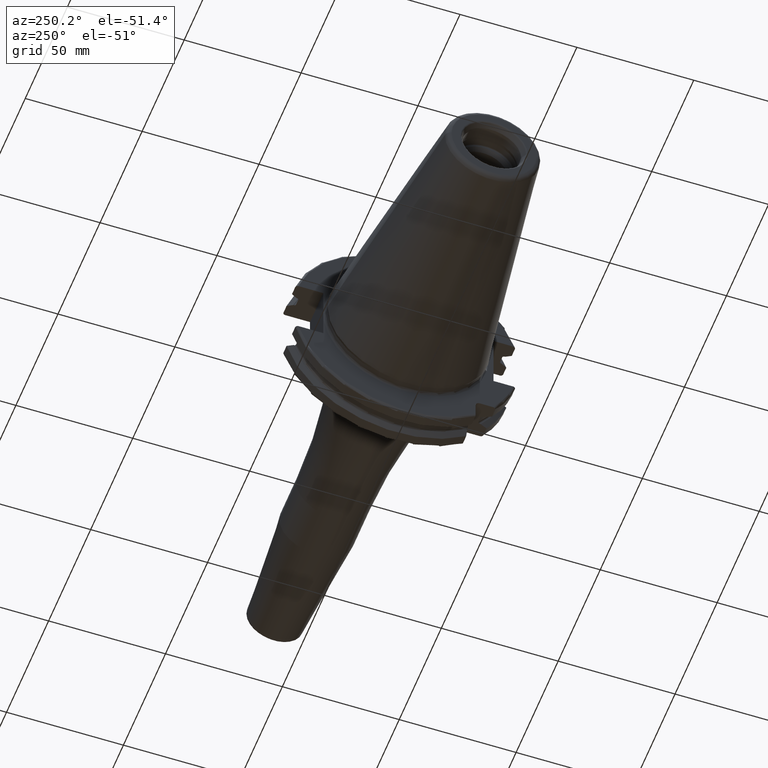
[diagram: clean part render]
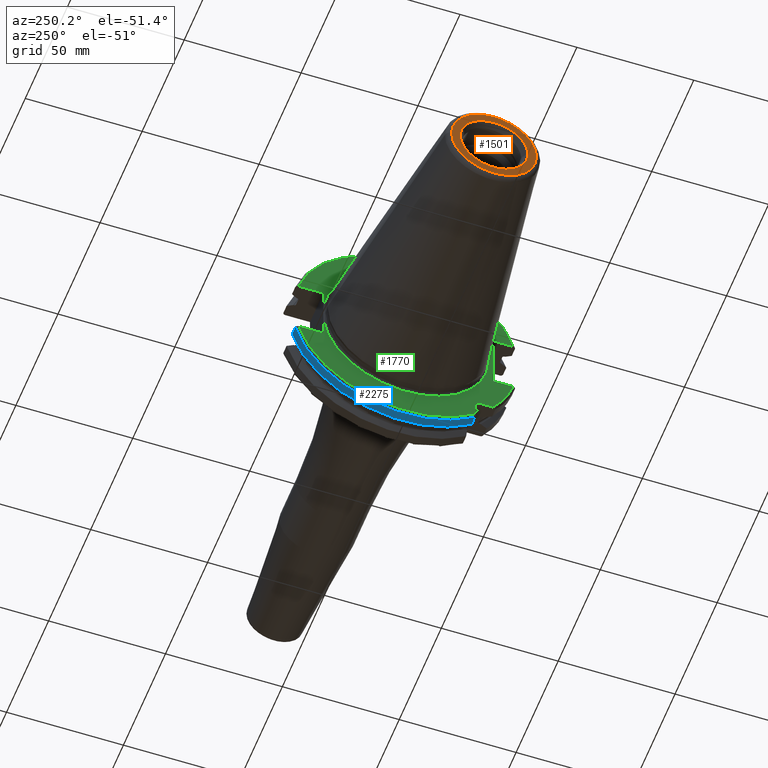
[diagram: same view with three faces highlighted in distinct colors, each labeled with its STEP entity id]
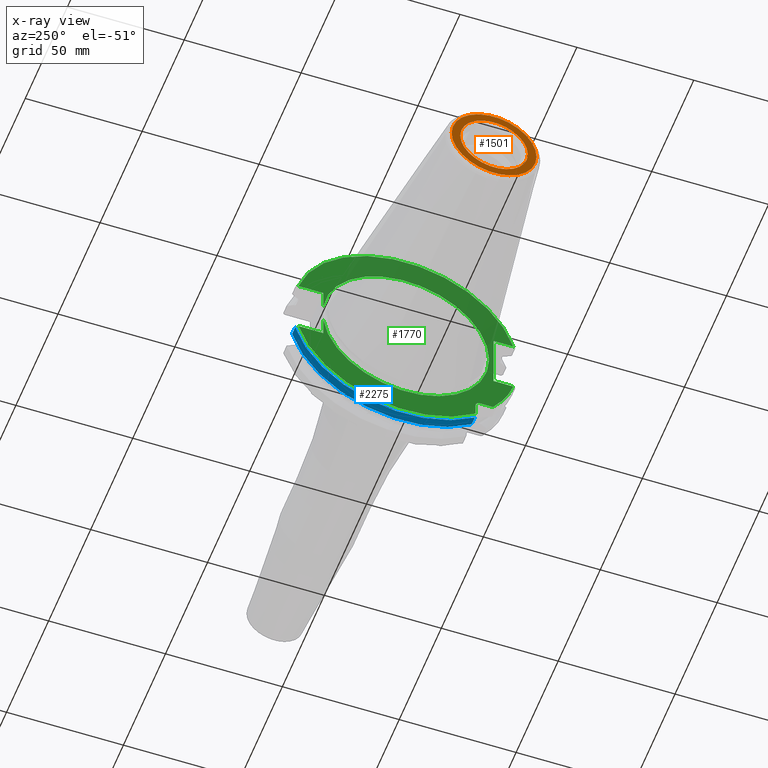
[diagram: x-ray of the same camera — body ghosted, the three highlighted faces saturated]
A machine part, auxiliary view with three faces highlighted in distinct colors.
The next image is the same camera in x-ray (body ghosted, the three faces saturated) — at least one of them is partly hidden behind the body in this view.
Their STEP definitions:

[orange] entity #1501 — the highlighted planar face has unit normal (1, 0, 0).
#2=CARTESIAN_POINT('',(-1.016E2,0.E0,0.E0));
#3=DIRECTION('',(-1.E0,0.E0,0.E0));
#4=DIRECTION('',(0.E0,1.E0,0.E0));
#5=AXIS2_PLACEMENT_3D('',#2,#3,#4);
#7=CARTESIAN_POINT('',(-1.016E2,0.E0,0.E0));
#8=DIRECTION('',(1.E0,0.E0,0.E0));
#9=DIRECTION('',(0.E0,1.E0,0.E0));
#10=AXIS2_PLACEMENT_3D('',#7,#8,#9);
#12=CARTESIAN_POINT('',(-1.016E2,0.E0,0.E0));
#13=DIRECTION('',(1.E0,0.E0,0.E0));
#14=DIRECTION('',(0.E0,1.E0,0.E0));
#15=AXIS2_PLACEMENT_3D('',#12,#13,#14);
#17=CARTESIAN_POINT('',(-1.016E2,0.E0,0.E0));
#18=DIRECTION('',(1.E0,0.E0,0.E0));
#19=DIRECTION('',(0.E0,-1.E0,0.E0));
#20=AXIS2_PLACEMENT_3D('',#17,#18,#19);
#1227=CARTESIAN_POINT('',(-1.016E2,1.816144700117E1,0.E0));
#1229=VERTEX_POINT('',#1227);
#1231=CARTESIAN_POINT('',(-1.016E2,-1.816144700117E1,0.E0));
#1233=VERTEX_POINT('',#1231);
#1290=CARTESIAN_POINT('',(-1.016E2,1.446188021535E1,0.E0));
#1291=CARTESIAN_POINT('',(-1.016E2,-1.446188021535E1,0.E0));
#1292=VERTEX_POINT('',#1290);
#1293=VERTEX_POINT('',#1291);
#1484=CARTESIAN_POINT('',(-1.016E2,0.E0,0.E0));
#1485=DIRECTION('',(1.E0,0.E0,0.E0));
#1486=DIRECTION('',(0.E0,-1.E0,0.E0));
#1487=AXIS2_PLACEMENT_3D('',#1484,#1485,#1486);
#1488=PLANE('',#1487);
#1490=ORIENTED_EDGE('',*,*,#1489,.F.);
#1492=ORIENTED_EDGE('',*,*,#1491,.T.);
#1493=EDGE_LOOP('',(#1490,#1492));
#1494=FACE_OUTER_BOUND('',#1493,.F.);
#1496=ORIENTED_EDGE('',*,*,#1495,.F.);
#1498=ORIENTED_EDGE('',*,*,#1497,.F.);
#1499=EDGE_LOOP('',(#1496,#1498));
#1500=FACE_BOUND('',#1499,.F.);
#1501=ADVANCED_FACE('',(#1494,#1500),#1488,.F.);
#6=CIRCLE('',#5,1.816144700117E1);
#11=CIRCLE('',#10,1.816144700117E1);
#16=CIRCLE('',#15,1.446188021535E1);
#21=CIRCLE('',#20,1.446188021535E1);
#1489=EDGE_CURVE('',#1229,#1233,#6,.T.);
#1491=EDGE_CURVE('',#1229,#1233,#11,.T.);
#1495=EDGE_CURVE('',#1292,#1293,#16,.T.);
#1497=EDGE_CURVE('',#1293,#1292,#21,.T.);

[blue] entity #2275 — the highlighted cylindrical surface (partial cylindrical patch) has radius 48.7375 mm, axis along (1, 0, 0).
#258=CARTESIAN_POINT('',(4.2E0,0.E0,0.E0));
#259=DIRECTION('',(-1.E0,0.E0,0.E0));
#260=DIRECTION('',(0.E0,9.643354064066E-1,-2.646832521159E-1));
#261=AXIS2_PLACEMENT_3D('',#258,#259,#260);
#700=CARTESIAN_POINT('',(7.934621614173E0,4.699929686974E1,-1.29E1));
#707=CARTESIAN_POINT('',(7.934621614173E0,-2.985E1,-3.852689198793E1));
#723=DIRECTION('',(1.E0,0.E0,0.E0));
#724=VECTOR('',#723,3.734621614173E0);
#725=CARTESIAN_POINT('',(4.2E0,4.699929686974E1,-1.29E1));
#726=LINE('',#725,#724);
#727=DIRECTION('',(1.E0,0.E0,0.E0));
#728=VECTOR('',#727,3.734621614173E0);
#729=CARTESIAN_POINT('',(4.2E0,-2.985E1,-3.852689198793E1));
#730=LINE('',#729,#728);
#731=CARTESIAN_POINT('',(7.934621614173E0,0.E0,0.E0));
#732=DIRECTION('',(1.E0,0.E0,0.E0));
#733=DIRECTION('',(0.E0,-6.124647345473E-1,-7.904979120376E-1));
#734=AXIS2_PLACEMENT_3D('',#731,#732,#733);
#1346=VERTEX_POINT('',#700);
#1392=CARTESIAN_POINT('',(4.2E0,4.699929686974E1,-1.29E1));
#1393=VERTEX_POINT('',#1392);
#1421=CARTESIAN_POINT('',(4.2E0,-2.985E1,-3.852689198793E1));
#1422=VERTEX_POINT('',#1421);
#1445=VERTEX_POINT('',#707);
#2264=CARTESIAN_POINT('',(-1.076325E2,0.E0,0.E0));
#2265=DIRECTION('',(1.E0,0.E0,0.E0));
#2266=DIRECTION('',(0.E0,-1.E0,0.E0));
#2267=AXIS2_PLACEMENT_3D('',#2264,#2265,#2266);
#2268=CYLINDRICAL_SURFACE('',#2267,4.87375E1);
#2269=ORIENTED_EDGE('',*,*,#1857,.F.);
#2270=ORIENTED_EDGE('',*,*,#1813,.T.);
#2271=ORIENTED_EDGE('',*,*,#1715,.T.);
#2272=ORIENTED_EDGE('',*,*,#2244,.T.);
#2273=EDGE_LOOP('',(#2269,#2270,#2271,#2272));
#2274=FACE_OUTER_BOUND('',#2273,.F.);
#2275=ADVANCED_FACE('',(#2274),#2268,.T.);
#262=CIRCLE('',#261,4.87375E1);
#735=CIRCLE('',#734,4.87375E1);
#1715=EDGE_CURVE('',#1422,#1445,#730,.T.);
#1813=EDGE_CURVE('',#1393,#1422,#262,.T.);
#1857=EDGE_CURVE('',#1393,#1346,#726,.T.);
#2244=EDGE_CURVE('',#1445,#1346,#735,.T.);

[green] entity #1770 — the highlighted planar face has unit normal (1, 0, 0).
#117=CARTESIAN_POINT('',(3.2E0,0.E0,0.E0));
#118=DIRECTION('',(-1.E0,0.E0,0.E0));
#119=DIRECTION('',(0.E0,9.922698524245E-1,-1.240989120402E-1));
#120=AXIS2_PLACEMENT_3D('',#117,#118,#119);
#177=CARTESIAN_POINT('',(3.2E0,-3.16E1,-3.16E1));
#178=DIRECTION('',(1.E0,0.E0,0.E0));
#179=DIRECTION('',(0.E0,1.E0,0.E0));
#180=AXIS2_PLACEMENT_3D('',#177,#178,#179);
#182=DIRECTION('',(0.E0,-1.E0,0.E0));
#183=VECTOR('',#182,5.653810627237E0);
#184=CARTESIAN_POINT('',(3.2E0,-3.16E1,-2.985E1));
#185=LINE('',#184,#183);
#186=DIRECTION('',(0.E0,0.E0,1.E0));
#187=VECTOR('',#186,5.653810627237E0);
#188=CARTESIAN_POINT('',(3.2E0,-2.985E1,-3.725381062724E1));
#189=LINE('',#188,#187);
#190=CARTESIAN_POINT('',(3.2E0,0.E0,0.E0));
#191=DIRECTION('',(-1.E0,0.E0,0.E0));
#192=DIRECTION('',(0.E0,9.627964123359E-1,-2.702278083268E-1));
#193=AXIS2_PLACEMENT_3D('',#190,#191,#192);
#195=DIRECTION('',(0.E0,-1.E0,0.E0));
#196=VECTOR('',#195,1.066149373389E1);
#197=CARTESIAN_POINT('',(3.2E0,4.596149373389E1,-1.29E1));
#198=LINE('',#197,#196);
#199=DIRECTION('',(0.E0,0.E0,-1.E0));
#200=VECTOR('',#199,8.485181204172E0);
#201=CARTESIAN_POINT('',(3.2E0,3.53E1,-4.414818795828E0));
#202=LINE('',#201,#200);
#203=DIRECTION('',(0.E0,0.E0,-1.E0));
#204=VECTOR('',#203,8.485181204172E0);
#205=CARTESIAN_POINT('',(3.2E0,3.53E1,1.29E1));
#206=LINE('',#205,#204);
#207=DIRECTION('',(0.E0,-1.E0,0.E0));
#208=VECTOR('',#207,1.066149373389E1);
#209=CARTESIAN_POINT('',(3.2E0,4.596149373389E1,1.29E1));
#210=LINE('',#209,#208);
#211=CARTESIAN_POINT('',(3.2E0,0.E0,0.E0));
#212=DIRECTION('',(1.E0,0.E0,0.E0));
#213=DIRECTION('',(0.E0,9.627964123359E-1,2.702278083268E-1));
#214=AXIS2_PLACEMENT_3D('',#211,#212,#213);
#216=DIRECTION('',(0.E0,1.E0,0.E0));
#217=VECTOR('',#216,8.461493733886E0);
#218=CARTESIAN_POINT('',(3.2E0,-4.596149373389E1,1.29E1));
#219=LINE('',#218,#217);
#220=DIRECTION('',(0.E0,0.E0,1.E0));
#221=VECTOR('',#220,2.58E1);
#222=CARTESIAN_POINT('',(3.2E0,-3.75E1,-1.29E1));
#223=LINE('',#222,#221);
#224=DIRECTION('',(0.E0,1.E0,0.E0));
#225=VECTOR('',#224,8.461493733886E0);
#226=CARTESIAN_POINT('',(3.2E0,-4.596149373389E1,-1.29E1));
#227=LINE('',#226,#225);
#228=CARTESIAN_POINT('',(3.2E0,0.E0,0.E0));
#229=DIRECTION('',(-1.E0,0.E0,0.E0));
#230=DIRECTION('',(0.E0,-7.803888060170E-1,-6.252945797329E-1));
#231=AXIS2_PLACEMENT_3D('',#228,#229,#230);
#279=CARTESIAN_POINT('',(3.2E0,-3.725381062724E1,-2.985E1));
#891=CARTESIAN_POINT('',(3.2E0,0.E0,0.E0));
#892=DIRECTION('',(1.E0,0.E0,0.E0));
#893=DIRECTION('',(0.E0,9.922698524245E-1,1.240989120402E-1));
#894=AXIS2_PLACEMENT_3D('',#891,#892,#893);
#1238=CARTESIAN_POINT('',(3.2E0,-3.5575E1,0.E0));
#1240=VERTEX_POINT('',#1238);
#1372=CARTESIAN_POINT('',(3.2E0,4.596149373389E1,1.29E1));
#1373=CARTESIAN_POINT('',(3.2E0,3.53E1,1.29E1));
#1374=VERTEX_POINT('',#1372);
#1375=VERTEX_POINT('',#1373);
#1376=CARTESIAN_POINT('',(3.2E0,3.53E1,4.414818795828E0));
#1377=VERTEX_POINT('',#1376);
#1378=CARTESIAN_POINT('',(3.2E0,3.53E1,-4.414818795828E0));
#1379=CARTESIAN_POINT('',(3.2E0,3.53E1,-1.29E1));
#1380=VERTEX_POINT('',#1378);
#1381=VERTEX_POINT('',#1379);
#1382=CARTESIAN_POINT('',(3.2E0,4.596149373389E1,-1.29E1));
#1383=VERTEX_POINT('',#1382);
#1384=CARTESIAN_POINT('',(3.2E0,-4.596149373389E1,-1.29E1));
#1385=CARTESIAN_POINT('',(3.2E0,-3.75E1,-1.29E1));
#1386=VERTEX_POINT('',#1384);
#1387=VERTEX_POINT('',#1385);
#1388=CARTESIAN_POINT('',(3.2E0,-3.75E1,1.29E1));
#1389=VERTEX_POINT('',#1388);
#1390=CARTESIAN_POINT('',(3.2E0,-4.596149373389E1,1.29E1));
#1391=VERTEX_POINT('',#1390);
#1423=CARTESIAN_POINT('',(3.2E0,-2.985E1,-3.725381062724E1));
#1424=VERTEX_POINT('',#1423);
#1429=CARTESIAN_POINT('',(3.2E0,-2.985E1,-3.16E1));
#1430=CARTESIAN_POINT('',(3.2E0,-3.16E1,-2.985E1));
#1431=VERTEX_POINT('',#1429);
#1432=VERTEX_POINT('',#1430);
#1451=VERTEX_POINT('',#279);
#1738=CARTESIAN_POINT('',(3.2E0,0.E0,0.E0));
#1739=DIRECTION('',(1.E0,0.E0,0.E0));
#1740=DIRECTION('',(0.E0,-1.E0,0.E0));
#1741=AXIS2_PLACEMENT_3D('',#1738,#1739,#1740);
#1742=PLANE('',#1741);
#1744=ORIENTED_EDGE('',*,*,#1743,.F.);
#1745=ORIENTED_EDGE('',*,*,#1731,.F.);
#1746=ORIENTED_EDGE('',*,*,#1719,.F.);
#1748=ORIENTED_EDGE('',*,*,#1747,.F.);
#1750=ORIENTED_EDGE('',*,*,#1749,.T.);
#1751=ORIENTED_EDGE('',*,*,#1645,.F.);
#1752=ORIENTED_EDGE('',*,*,#1626,.T.);
#1754=ORIENTED_EDGE('',*,*,#1753,.F.);
#1755=ORIENTED_EDGE('',*,*,#1640,.F.);
#1757=ORIENTED_EDGE('',*,*,#1756,.F.);
#1759=ORIENTED_EDGE('',*,*,#1758,.T.);
#1761=ORIENTED_EDGE('',*,*,#1760,.T.);
#1763=ORIENTED_EDGE('',*,*,#1762,.F.);
#1765=ORIENTED_EDGE('',*,*,#1764,.F.);
#1767=ORIENTED_EDGE('',*,*,#1766,.F.);
#1768=EDGE_LOOP('',(#1744,#1745,#1746,#1748,#1750,#1751,#1752,#1754,#1755,#1757,
#1759,#1761,#1763,#1765,#1767));
#1769=FACE_OUTER_BOUND('',#1768,.F.);
#1770=ADVANCED_FACE('',(#1769),#1742,.F.);
#121=CIRCLE('',#120,3.5575E1);
#181=CIRCLE('',#180,1.75E0);
#194=CIRCLE('',#193,4.77375E1);
#215=CIRCLE('',#214,4.77375E1);
#232=CIRCLE('',#231,4.77375E1);
#895=CIRCLE('',#894,3.5575E1);
#1626=EDGE_CURVE('',#1380,#1240,#121,.T.);
#1640=EDGE_CURVE('',#1375,#1377,#206,.T.);
#1645=EDGE_CURVE('',#1380,#1381,#202,.T.);
#1719=EDGE_CURVE('',#1424,#1431,#189,.T.);
#1731=EDGE_CURVE('',#1431,#1432,#181,.T.);
#1743=EDGE_CURVE('',#1432,#1451,#185,.T.);
#1747=EDGE_CURVE('',#1383,#1424,#194,.T.);
#1749=EDGE_CURVE('',#1383,#1381,#198,.T.);
#1753=EDGE_CURVE('',#1377,#1240,#895,.T.);
#1756=EDGE_CURVE('',#1374,#1375,#210,.T.);
#1758=EDGE_CURVE('',#1374,#1391,#215,.T.);
#1760=EDGE_CURVE('',#1391,#1389,#219,.T.);
#1762=EDGE_CURVE('',#1387,#1389,#223,.T.);
#1764=EDGE_CURVE('',#1386,#1387,#227,.T.);
#1766=EDGE_CURVE('',#1451,#1386,#232,.T.);